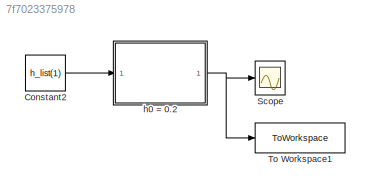
MODEL slx_7f7023375978
KIND model
CONFIG AbsTol = auto
CONFIG EnableMultiTasking = off
CONFIG FixedStep = 0.1
CONFIG MaxStep = auto
CONFIG MinStep = auto
CONFIG RelTol = 1e-3
CONFIG SampleTimeConstraint = Unconstrained
CONFIG SolverName = FixedStepAuto
CONFIG StartTime = 0.0
CONFIG StopTime = 500
BLOCK [Constant] Constant2
  Value = h_list(1)
BLOCK [Scope] Scope
  Floating = off
  NumInputPorts = 1
  ScopeSpecificationString = Simulink.scopes.TimeScopeBlockCfg('CurrentConfiguration', extmgr.ConfigurationSet(extmgr.Configuration('Core','General UI',true),extmgr.Configuration('Core','Source UI',true),extmgr.Configuration('Sources','WiredSimulink',true,'DataLoggingVariableName','ScopeData1'),extmgr.Configuration('Visuals','Time Domain',true,'SerializedDisplays',{struct('MinYLimReal','0.19416','MaxYLimReal','0.20454','YLabe...<+1481ch>
BLOCK [ToWorkspace] To Workspace1
  FixptAsFi = on
  MaxDataPoints = inf
  SampleTime = -1
  SaveFormat = Timeseries
  VariableName = nivout
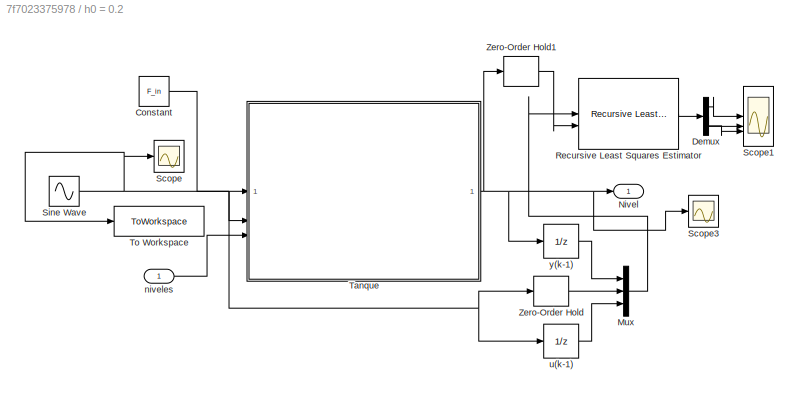
BLOCK [SubSystem] h0 = 0.2
BLOCK [Constant] h0 = 0.2/Constant
  Value = F_in
BLOCK [Demux] h0 = 0.2/Demux
  Outputs = 3
BLOCK [Mux] h0 = 0.2/Mux
  DisplayOption = bar
  Inputs = 3
BLOCK [Outport] h0 = 0.2/Nivel
BLOCK [Reference] h0 = 0.2/Recursive Least Squares Estimator  REF=ctrlSharedLib/Recursive Least Squares Estimator
  LibrarySourceBlock = slident/Estimators/Recursive Least Squares Estimator
  SourceBlock = ctrlSharedLib/Recursive Least Squares Estimator
  SourceType = idEstimatorsRLS
BLOCK [Scope] h0 = 0.2/Scope
  Floating = off
  NumInputPorts = 1
  ScopeSpecificationString = Simulink.scopes.TimeScopeBlockCfg('CurrentConfiguration', extmgr.ConfigurationSet(extmgr.Configuration('Core','General UI',true),extmgr.Configuration('Core','Source UI',true),extmgr.Configuration('Sources','WiredSimulink',true,'DataLoggingVariableName','ScopeData1'),extmgr.Configuration('Visuals','Time Domain',true,'SerializedDisplays',{struct('MinYLimReal','0.62174','MaxYLimReal','1.12174','YLabe...<+1455ch>
BLOCK [Scope] h0 = 0.2/Scope1
  Floating = off
  NumInputPorts = 3
  ScopeSpecificationString = Simulink.scopes.TimeScopeBlockCfg('CurrentConfiguration', extmgr.ConfigurationSet(extmgr.Configuration('Core','General UI',true),extmgr.Configuration('Core','Source UI',true),extmgr.Configuration('Sources','WiredSimulink',true,'DataLoggingVariableName','ScopeData1'),extmgr.Configuration('Visuals','Time Domain',true,'SerializedDisplays',{struct('MinYLimReal','-0.12672','MaxYLimReal','1.12972','YLab...<+1571ch>
BLOCK [Scope] h0 = 0.2/Scope3
  Floating = off
  NumInputPorts = 1
  ScopeSpecificationString = Simulink.scopes.TimeScopeBlockCfg('CurrentConfiguration', extmgr.ConfigurationSet(extmgr.Configuration('Core','General UI',true),extmgr.Configuration('Core','Source UI',true),extmgr.Configuration('Sources','WiredSimulink',true,'DataLoggingVariableName','ScopeData3'),extmgr.Configuration('Visuals','Time Domain',true,'SerializedDisplays',{struct('MinYLimReal','0.19416','MaxYLimReal','0.20454','YLabe...<+1452ch>
BLOCK [Sin] h0 = 0.2/Sine Wave
  Amplitude = 0.2
  Bias = k_list(1)
  SampleTime = 0
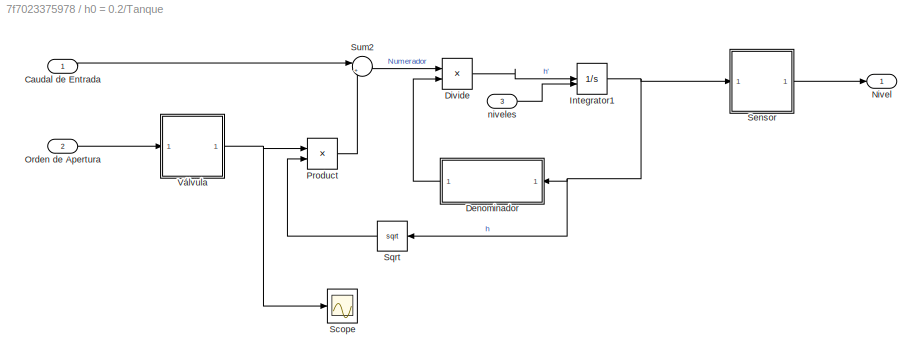
BLOCK [SubSystem] h0 = 0.2/Tanque
BLOCK [Inport] h0 = 0.2/Tanque/Caudal de Entrada
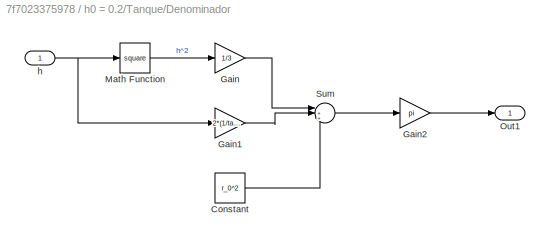
BLOCK [SubSystem] h0 = 0.2/Tanque/Denominador
  NameLocation = top
BLOCK [Constant] h0 = 0.2/Tanque/Denominador/Constant
  Value = r_0^2
BLOCK [Gain] h0 = 0.2/Tanque/Denominador/Gain
  Gain = 1/3
BLOCK [Gain] h0 = 0.2/Tanque/Denominador/Gain1
  Gain = 2*(1/tand(theta))*r_0
BLOCK [Gain] h0 = 0.2/Tanque/Denominador/Gain2
  Gain = pi
BLOCK [Math] h0 = 0.2/Tanque/Denominador/Math Function
  Operator = square
BLOCK [Outport] h0 = 0.2/Tanque/Denominador/Out1
BLOCK [Sum] h0 = 0.2/Tanque/Denominador/Sum
  Inputs = |+++
BLOCK [Inport] h0 = 0.2/Tanque/Denominador/h
BLOCK [Product] h0 = 0.2/Tanque/Divide
  Inputs = */
BLOCK [Integrator] h0 = 0.2/Tanque/Integrator1
  InitialCondition = h_list(5)
  InitialConditionSource = external
BLOCK [Outport] h0 = 0.2/Tanque/Nivel
BLOCK [Inport] h0 = 0.2/Tanque/Orden de Apertura
  Port = 2
BLOCK [Product] h0 = 0.2/Tanque/Product
BLOCK [Scope] h0 = 0.2/Tanque/Scope
  Floating = off
  NumInputPorts = 1
  ScopeSpecificationString = Simulink.scopes.TimeScopeBlockCfg('CurrentConfiguration', extmgr.ConfigurationSet(extmgr.Configuration('Core','General UI',true),extmgr.Configuration('Core','Source UI',true),extmgr.Configuration('Sources','WiredSimulink',true,'DataLoggingVariableName','ScopeData2'),extmgr.Configuration('Visuals','Time Domain',true,'SerializedDisplays',{struct('MinYLimReal','0.0078259','MaxYLimReal','0.0078291','Y...<+1469ch>
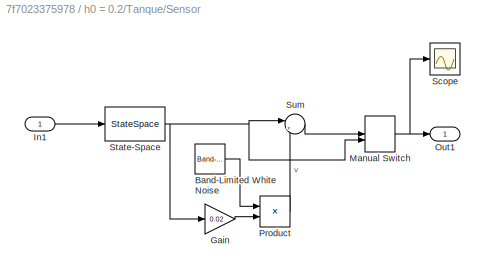
BLOCK [SubSystem] h0 = 0.2/Tanque/Sensor
BLOCK [Reference] h0 = 0.2/Tanque/Sensor/Band-Limited White Noise  REF=simulink/Sources/Band-Limited
White Noise
  SourceBlock = simulink/Sources/Band-Limited\nWhite Noise
  SourceType = Band-Limited White Noise.
BLOCK [Gain] h0 = 0.2/Tanque/Sensor/Gain
  Gain = 0.02
BLOCK [Inport] h0 = 0.2/Tanque/Sensor/In1
BLOCK [ManualSwitch] h0 = 0.2/Tanque/Sensor/Manual Switch
BLOCK [Outport] h0 = 0.2/Tanque/Sensor/Out1
BLOCK [Product] h0 = 0.2/Tanque/Sensor/Product
BLOCK [Scope] h0 = 0.2/Tanque/Sensor/Scope
  Floating = off
  NumInputPorts = 1
  ScopeSpecificationString = Simulink.scopes.TimeScopeBlockCfg('CurrentConfiguration', extmgr.ConfigurationSet(extmgr.Configuration('Core','General UI',true),extmgr.Configuration('Core','Source UI',true),extmgr.Configuration('Sources','WiredSimulink',true,'DataLoggingVariableName','ScopeData2'),extmgr.Configuration('Visuals','Time Domain',true,'SerializedDisplays',{struct('MinYLimReal','0.19416','MaxYLimReal','0.20454','YLabe...<+1459ch>
BLOCK [StateSpace] h0 = 0.2/Tanque/Sensor/State-Space
  A = A
  B = B
  C = C
  D = D
  InitialCondition = h_list(1)*10
BLOCK [Sum] h0 = 0.2/Tanque/Sensor/Sum
  Inputs = |++
BLOCK [Sqrt] h0 = 0.2/Tanque/Sqrt
  NameLocation = top
BLOCK [Sum] h0 = 0.2/Tanque/Sum2
  Inputs = |+-
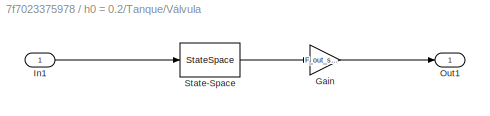
BLOCK [SubSystem] h0 = 0.2/Tanque/Válvula
BLOCK [Gain] h0 = 0.2/Tanque/Válvula/Gain
  Gain = F_out_sin_k
BLOCK [Inport] h0 = 0.2/Tanque/Válvula/In1
BLOCK [Outport] h0 = 0.2/Tanque/Válvula/Out1
BLOCK [StateSpace] h0 = 0.2/Tanque/Válvula/State-Space
  A = A
  B = B
  C = C
  D = D
  InitialCondition = k_list(1)*10
BLOCK [Inport] h0 = 0.2/Tanque/niveles
  Port = 3
BLOCK [ToWorkspace] h0 = 0.2/To Workspace
  FixptAsFi = on
  MaxDataPoints = inf
  SampleTime = -1
  SaveFormat = Timeseries
  VariableName = ctrout
BLOCK [ZeroOrderHold] h0 = 0.2/Zero-Order Hold
  SampleTime = -1
BLOCK [ZeroOrderHold] h0 = 0.2/Zero-Order Hold1
  SampleTime = -1
BLOCK [Inport] h0 = 0.2/niveles
BLOCK [UnitDelay] h0 = 0.2/u(k-1)
  HasFrameUpgradeWarning = on
  InitialCondition = k_list(1)
  SampleTime = -1
BLOCK [UnitDelay] h0 = 0.2/y(k-1)
  HasFrameUpgradeWarning = on
  InitialCondition = h_list(1)
  SampleTime = -1
LINE Constant2:1 -> h0 = 0.2:1
LINE h0 = 0.2/Constant:1 -> h0 = 0.2/Tanque:1
LINE h0 = 0.2/Demux:1 -> h0 = 0.2/Scope1:1
LINE h0 = 0.2/Demux:2 -> h0 = 0.2/Scope1:2
LINE h0 = 0.2/Demux:3 -> h0 = 0.2/Scope1:3
LINE h0 = 0.2/Mux:1 -> h0 = 0.2/Recursive Least Squares Estimator:1
LINE h0 = 0.2/Recursive Least Squares Estimator:1 -> h0 = 0.2/Demux:1
NET h0 = 0.2/Sine Wave:1 -> h0 = 0.2/Scope:1, h0 = 0.2/Tanque:2, h0 = 0.2/To Workspace:1, h0 = 0.2/Zero-Order Hold:1, h0 = 0.2/u(k-1):1
LINE h0 = 0.2/Tanque/Caudal de Entrada:1 -> h0 = 0.2/Tanque/Sum2:1
LINE h0 = 0.2/Tanque/Denominador/Constant:1 -> h0 = 0.2/Tanque/Denominador/Sum:3
LINE h0 = 0.2/Tanque/Denominador/Gain1:1 -> h0 = 0.2/Tanque/Denominador/Sum:2
LINE h0 = 0.2/Tanque/Denominador/Gain2:1 -> h0 = 0.2/Tanque/Denominador/Out1:1
LINE h0 = 0.2/Tanque/Denominador/Gain:1 -> h0 = 0.2/Tanque/Denominador/Sum:1
LINE h0 = 0.2/Tanque/Denominador/Math Function:1 -> h0 = 0.2/Tanque/Denominador/Gain:1
LINE h0 = 0.2/Tanque/Denominador/Sum:1 -> h0 = 0.2/Tanque/Denominador/Gain2:1
NET h0 = 0.2/Tanque/Denominador/h:1 -> h0 = 0.2/Tanque/Denominador/Gain1:1, h0 = 0.2/Tanque/Denominador/Math Function:1
LINE h0 = 0.2/Tanque/Denominador:1 -> h0 = 0.2/Tanque/Divide:2
LINE h0 = 0.2/Tanque/Divide:1 -> h0 = 0.2/Tanque/Integrator1:1
NET h0 = 0.2/Tanque/Integrator1:1 -> h0 = 0.2/Tanque/Denominador:1, h0 = 0.2/Tanque/Sensor:1, h0 = 0.2/Tanque/Sqrt:1
LINE h0 = 0.2/Tanque/Orden de Apertura:1 -> h0 = 0.2/Tanque/Válvula:1
LINE h0 = 0.2/Tanque/Product:1 -> h0 = 0.2/Tanque/Sum2:2
LINE h0 = 0.2/Tanque/Sensor/Band-Limited White Noise:1 -> h0 = 0.2/Tanque/Sensor/Product:1
LINE h0 = 0.2/Tanque/Sensor/Gain:1 -> h0 = 0.2/Tanque/Sensor/Product:2
LINE h0 = 0.2/Tanque/Sensor/In1:1 -> h0 = 0.2/Tanque/Sensor/State-Space:1
NET h0 = 0.2/Tanque/Sensor/Manual Switch:1 -> h0 = 0.2/Tanque/Sensor/Out1:1, h0 = 0.2/Tanque/Sensor/Scope:1
LINE h0 = 0.2/Tanque/Sensor/Product:1 -> h0 = 0.2/Tanque/Sensor/Sum:2
NET h0 = 0.2/Tanque/Sensor/State-Space:1 -> h0 = 0.2/Tanque/Sensor/Gain:1, h0 = 0.2/Tanque/Sensor/Manual Switch:2, h0 = 0.2/Tanque/Sensor/Sum:1
LINE h0 = 0.2/Tanque/Sensor/Sum:1 -> h0 = 0.2/Tanque/Sensor/Manual Switch:1
LINE h0 = 0.2/Tanque/Sensor:1 -> h0 = 0.2/Tanque/Nivel:1
LINE h0 = 0.2/Tanque/Sqrt:1 -> h0 = 0.2/Tanque/Product:2
LINE h0 = 0.2/Tanque/Sum2:1 -> h0 = 0.2/Tanque/Divide:1
LINE h0 = 0.2/Tanque/Válvula/Gain:1 -> h0 = 0.2/Tanque/Válvula/Out1:1
LINE h0 = 0.2/Tanque/Válvula/In1:1 -> h0 = 0.2/Tanque/Válvula/State-Space:1
LINE h0 = 0.2/Tanque/Válvula/State-Space:1 -> h0 = 0.2/Tanque/Válvula/Gain:1
NET h0 = 0.2/Tanque/Válvula:1 -> h0 = 0.2/Tanque/Product:1, h0 = 0.2/Tanque/Scope:1
LINE h0 = 0.2/Tanque/niveles:1 -> h0 = 0.2/Tanque/Integrator1:2
NET h0 = 0.2/Tanque:1 -> h0 = 0.2/Nivel:1, h0 = 0.2/Scope3:1, h0 = 0.2/Zero-Order Hold1:1, h0 = 0.2/y(k-1):1
LINE h0 = 0.2/Zero-Order Hold1:1 -> h0 = 0.2/Recursive Least Squares Estimator:2
LINE h0 = 0.2/Zero-Order Hold:1 -> h0 = 0.2/Mux:2
LINE h0 = 0.2/niveles:1 -> h0 = 0.2/Tanque:3
LINE h0 = 0.2/u(k-1):1 -> h0 = 0.2/Mux:3
LINE h0 = 0.2/y(k-1):1 -> h0 = 0.2/Mux:1
NET h0 = 0.2:1 -> Scope:1, To Workspace1:1
note: NET lines group one-source signal fan-out (src -> all destinations, sorted); 1:1 wires keep LINE
